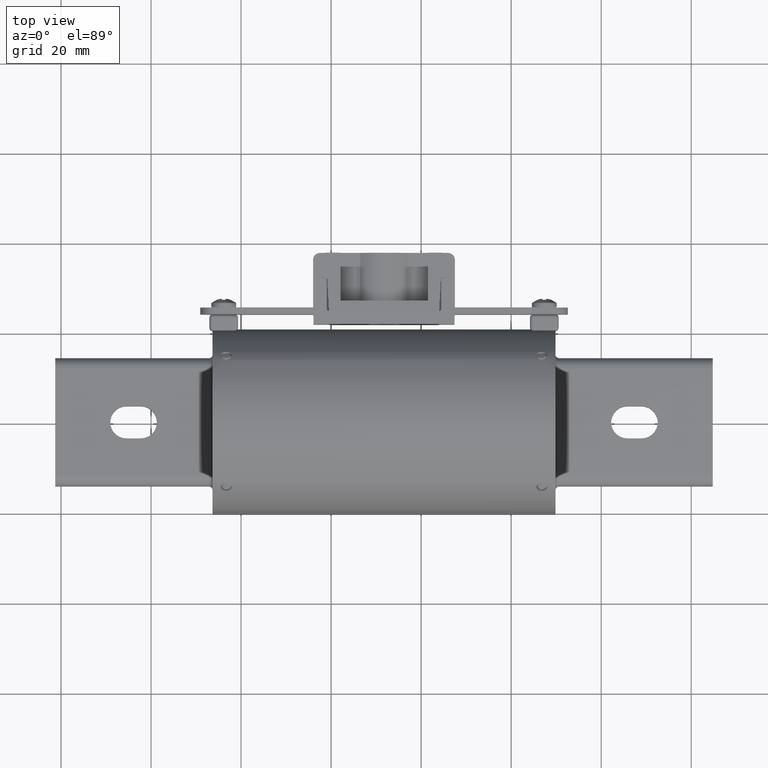
[diagram: clean part render]
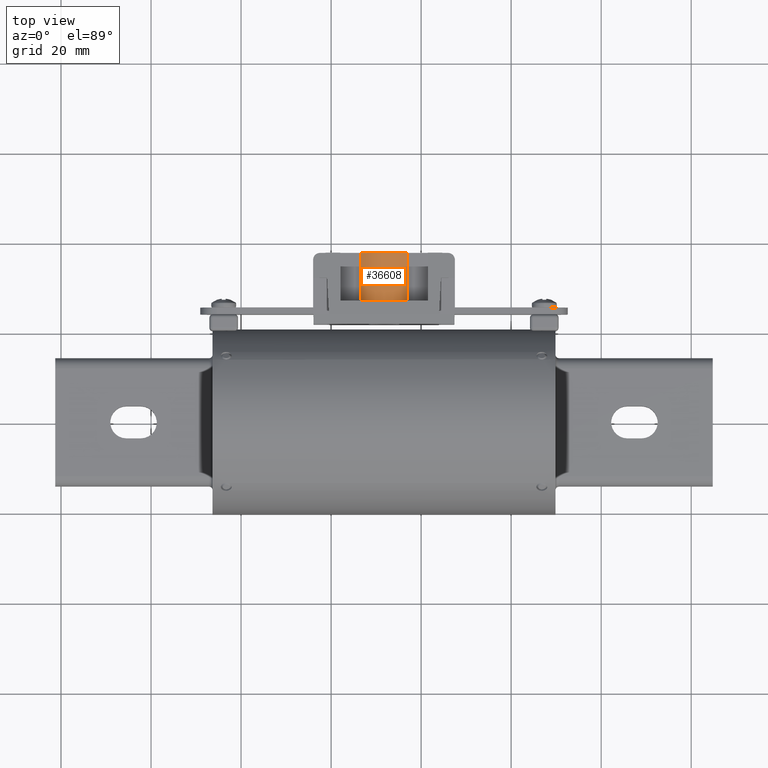
[diagram: same view with one face highlighted and labeled with its STEP entity id]
A machine part, top view. The second image highlights one B-rep face of the part: STEP entity #36608.
In plain terms, the highlighted cylindrical surface (edge-blend (fillet) strip) has radius 7.9079 mm, axis along (0, -1, 0).
Its self-contained STEP definition (entity closure, byte-faithful):
#1008 = DIRECTION ( 'NONE',  ( 0.0000000000000000000, -1.000000000000000000, 0.0000000000000000000 ) ) ;
#2632 = ORIENTED_EDGE ( 'NONE', *, *, #24266, .F. ) ;
#7079 = CARTESIAN_POINT ( 'NONE',  ( 1.250000000000000000, 1.479021418307482800, -8.537024980200822600E-018 ) ) ;
#12270 = VERTEX_POINT ( 'NONE', #77355 ) ;
#13618 = EDGE_CURVE ( 'NONE', #82828, #12270, #83036, .T. ) ;
#13635 = DIRECTION ( 'NONE',  ( 1.754926680137356000E-015, 0.0000000000000000000, -1.000000000000000000 ) ) ;
#14784 = CARTESIAN_POINT ( 'NONE',  ( 1.042373635335897700, 2.248511650372351200, 0.2319926675332559500 ) ) ;
#16700 = FACE_OUTER_BOUND ( 'NONE', #54875, .T. ) ;
#21921 = DIRECTION ( 'NONE',  ( 0.0000000000000000000, 0.0000000000000000000, -1.000000000000000000 ) ) ;
#24266 = EDGE_CURVE ( 'NONE', #47218, #82828, #58200, .T. ) ;
#25744 = AXIS2_PLACEMENT_3D ( 'NONE', #39341, #85102, #45953 ) ;
#34533 = EDGE_CURVE ( 'NONE', #78358, #47218, #49042, .T. ) ;
#34651 = EDGE_CURVE ( 'NONE', #78358, #12270, #65329, .T. ) ;
#36081 = ORIENTED_EDGE ( 'NONE', *, *, #13618, .F. ) ;
#36608 = ADVANCED_FACE ( 'NONE', ( #16700 ), #74147, .T. ) ;
#36846 = ORIENTED_EDGE ( 'NONE', *, *, #34533, .F. ) ;
#39341 = CARTESIAN_POINT ( 'NONE',  ( 1.250000000000000000, 1.059021418307482600, -8.537024980200822600E-018 ) ) ;
#42566 = AXIS2_PLACEMENT_3D ( 'NONE', #61028, #47855, #21921 ) ;
#45695 = CARTESIAN_POINT ( 'NONE',  ( 1.042373635335897700, 1.479021418307482800, 0.2319926675332559500 ) ) ;
#45953 = DIRECTION ( 'NONE',  ( 0.0000000000000000000, 0.0000000000000000000, -1.000000000000000000 ) ) ;
#47218 = VERTEX_POINT ( 'NONE', #60035 ) ;
#47855 = DIRECTION ( 'NONE',  ( 0.0000000000000000000, -1.000000000000000000, 0.0000000000000000000 ) ) ;
#49042 = CIRCLE ( 'NONE', #71554, 0.3113347155278811700 ) ;
#53068 = DIRECTION ( 'NONE',  ( -0.0000000000000000000, 1.000000000000000000, 5.012027464914204000E-017 ) ) ;
#54208 = DIRECTION ( 'NONE',  ( 0.0000000000000000000, -1.000000000000000000, 0.0000000000000000000 ) ) ;
#54875 = EDGE_LOOP ( 'NONE', ( #70502, #36081, #2632, #36846 ) ) ;
#56162 = VECTOR ( 'NONE', #1008, 39.37007874015748100 ) ;
#58200 = LINE ( 'NONE', #79868, #56162 ) ;
#60035 = CARTESIAN_POINT ( 'NONE',  ( 1.457626364664102800, 1.479021418307482800, 0.2319926675332559500 ) ) ;
#61028 = CARTESIAN_POINT ( 'NONE',  ( 1.250000000000000000, 2.248511650372351200, -8.537024980200822600E-018 ) ) ;
#65329 = LINE ( 'NONE', #14784, #82690 ) ;
#70502 = ORIENTED_EDGE ( 'NONE', *, *, #34651, .T. ) ;
#71554 = AXIS2_PLACEMENT_3D ( 'NONE', #7079, #53068, #13635 ) ;
#72637 = CARTESIAN_POINT ( 'NONE',  ( 1.457626364664102800, 1.059021418307482600, 0.2319926675332559500 ) ) ;
#74147 = CYLINDRICAL_SURFACE ( 'NONE', #42566, 0.3113347155278811700 ) ;
#77355 = CARTESIAN_POINT ( 'NONE',  ( 1.042373635335897700, 1.059021418307482600, 0.2319926675332559500 ) ) ;
#78358 = VERTEX_POINT ( 'NONE', #45695 ) ;
#79868 = CARTESIAN_POINT ( 'NONE',  ( 1.457626364664102800, 2.248511650372351200, 0.2319926675332559500 ) ) ;
#82690 = VECTOR ( 'NONE', #54208, 39.37007874015748100 ) ;
#82828 = VERTEX_POINT ( 'NONE', #72637 ) ;
#83036 = CIRCLE ( 'NONE', #25744, 0.3113347155278811700 ) ;
#85102 = DIRECTION ( 'NONE',  ( -0.0000000000000000000, -1.000000000000000000, -0.0000000000000000000 ) ) ;